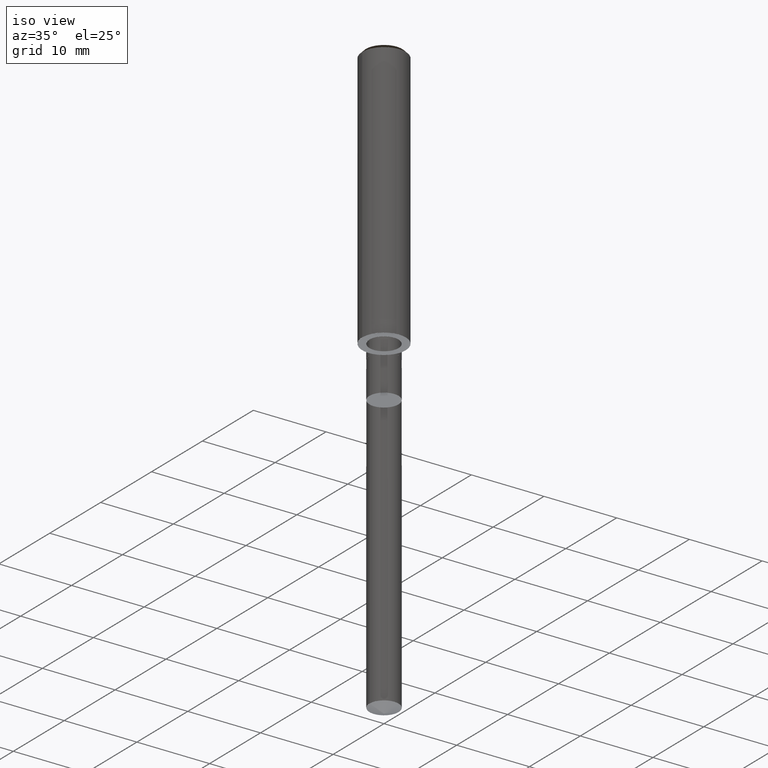
[diagram: clean part render]
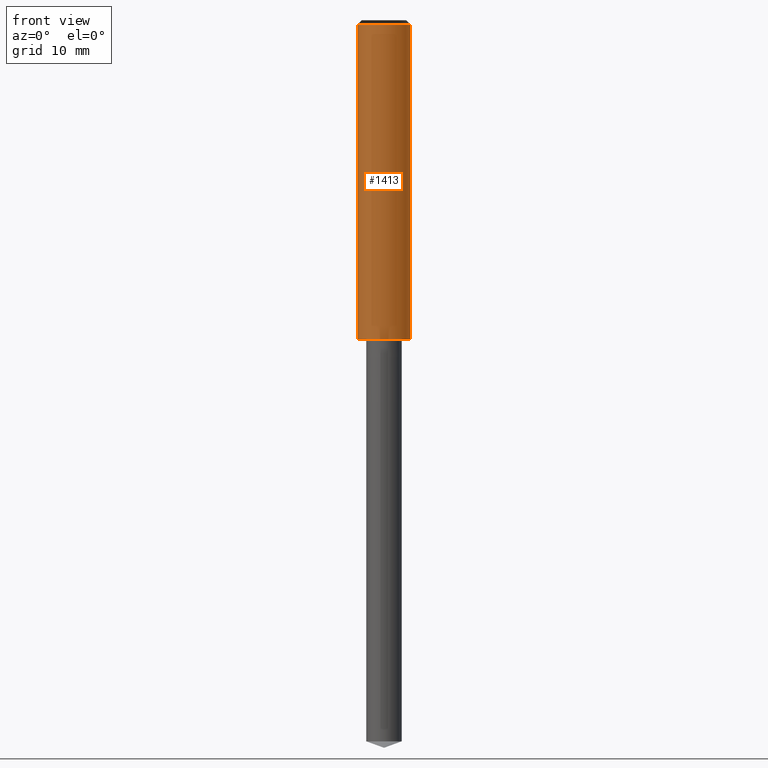
[diagram: tour spotlight — one face highlighted and labeled with its STEP entity id]
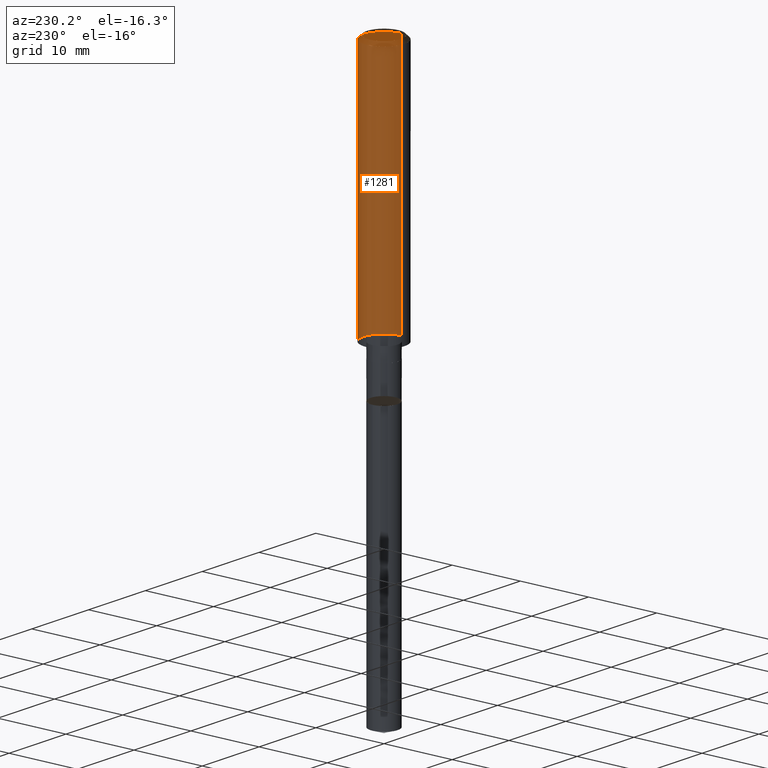
[diagram: tour spotlight — one face highlighted and labeled with its STEP entity id]
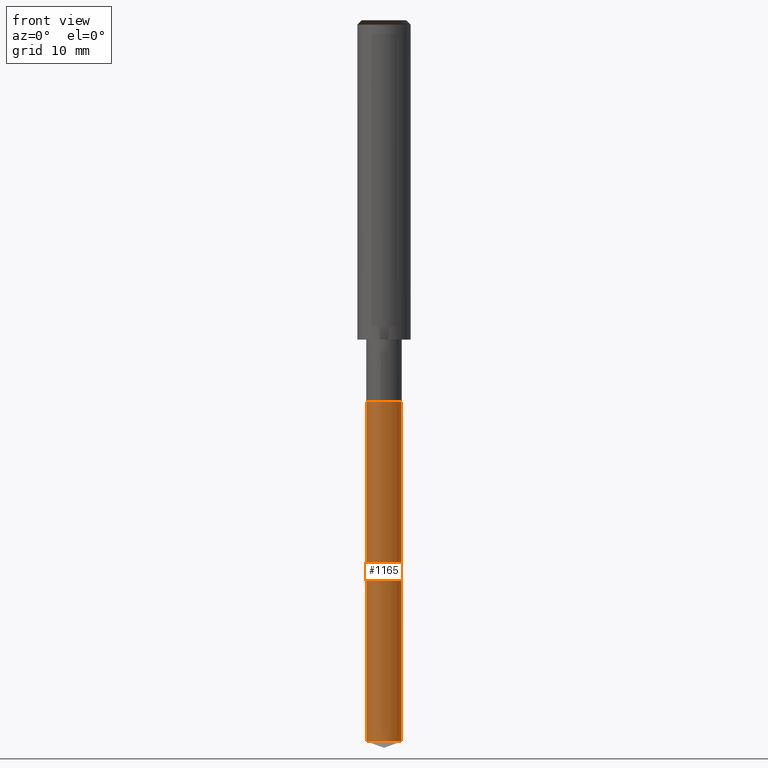
[diagram: tour spotlight — one face highlighted and labeled with its STEP entity id]
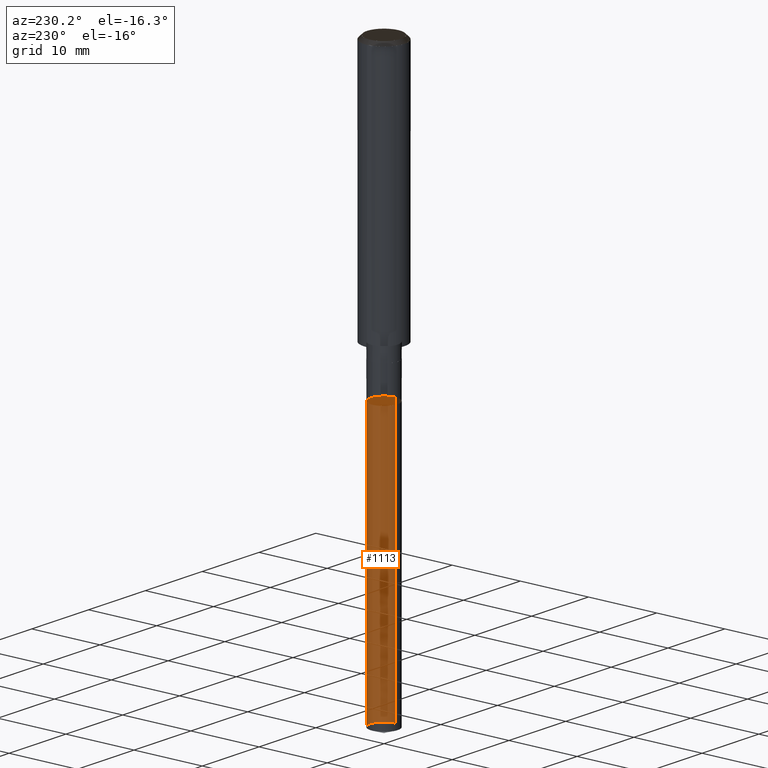
[diagram: tour spotlight — one face highlighted and labeled with its STEP entity id]
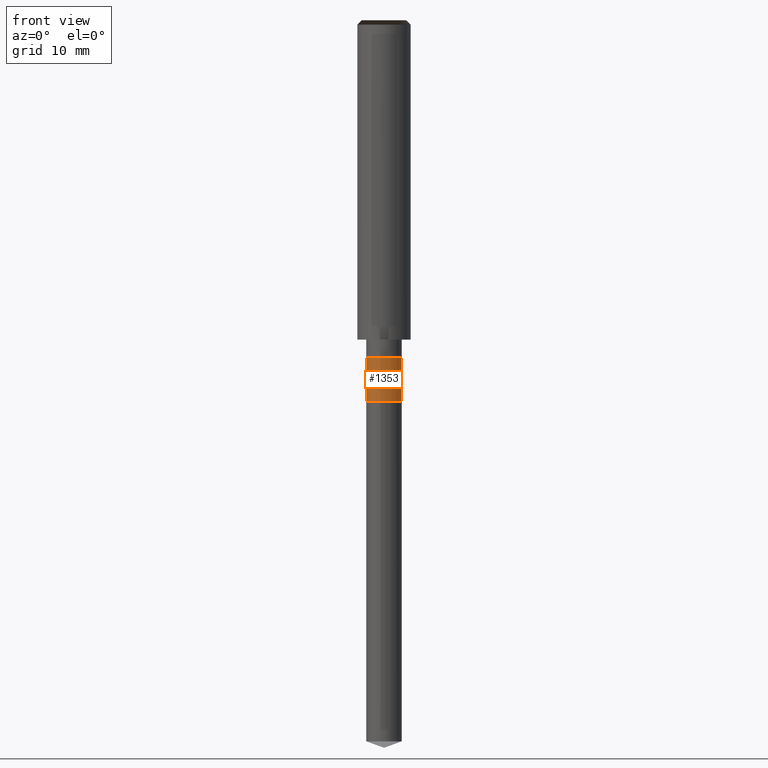
[diagram: tour spotlight — one face highlighted and labeled with its STEP entity id]
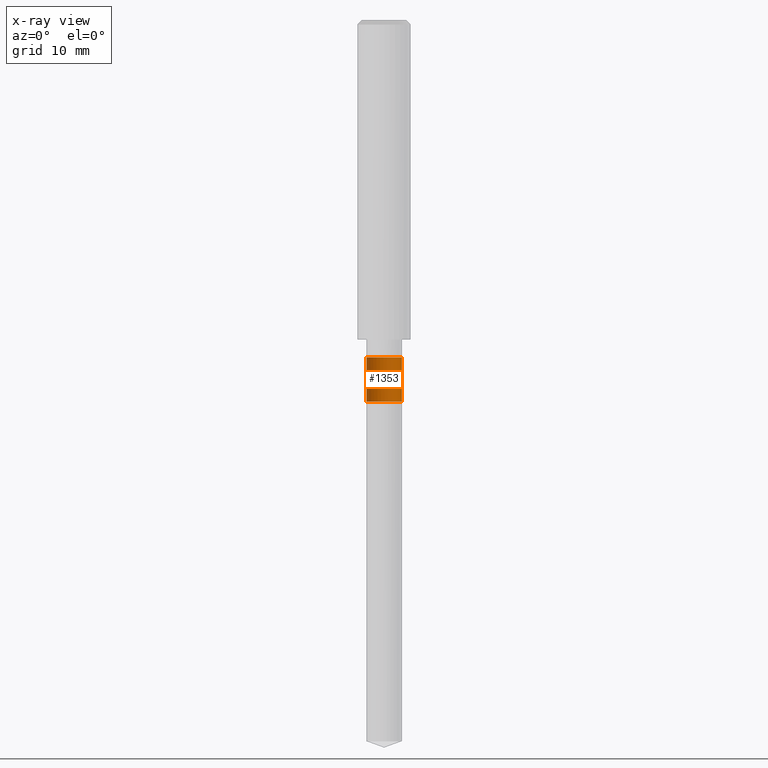
[diagram: x-ray of the same camera — body ghosted, this tour face saturated]
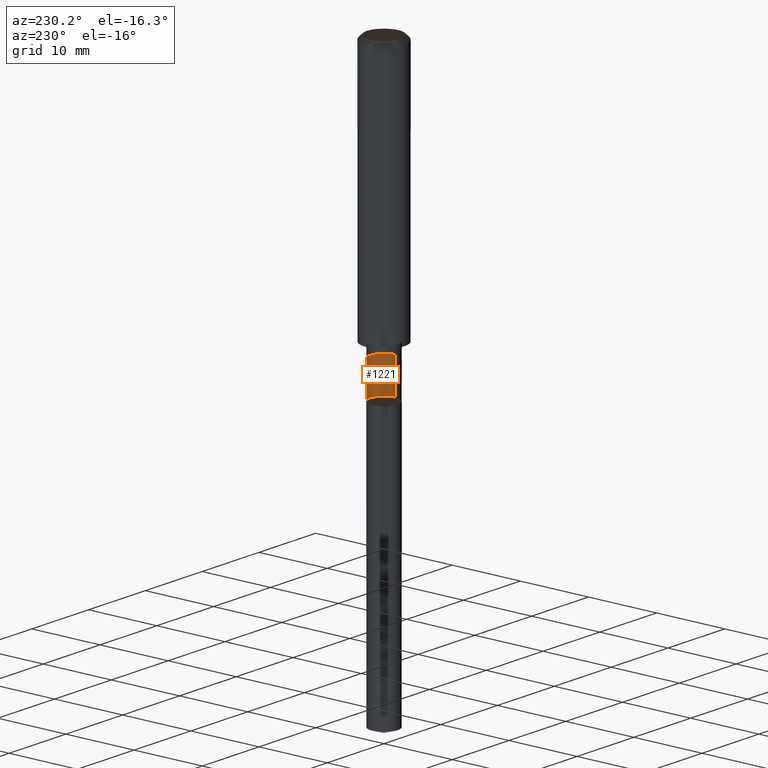
[diagram: tour spotlight — one face highlighted and labeled with its STEP entity id]
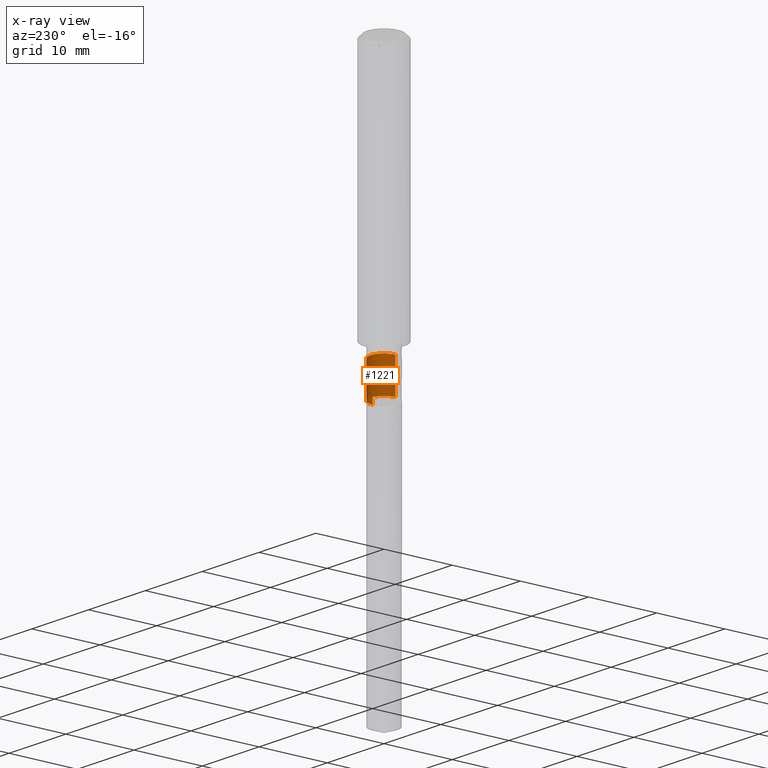
[diagram: x-ray of the same camera — body ghosted, this tour face saturated]
A machine part: a face-by-face anatomy tour. The part has 20 B-rep faces; the first image is the clean iso view, then the 6 largest visible faces are spotlighted one at a time (largest first), each with its STEP entity span.

Face 1 — front view, entity #1413. In plain terms, the highlighted face is a freeform B-spline surface patch.
Definition (entity closure, byte-faithful):
#1042=CARTESIAN_POINT('',(3.0,0.0,0.0));
#1046=CARTESIAN_POINT('',(-3.0,0.0,0.0));
#1047=CARTESIAN_POINT('',(3.0,0.0,35.5));
#1051=CARTESIAN_POINT('',(-3.0,0.0,35.5));
#1064=CARTESIAN_POINT('',(-3.0,-3.0,0.0));
#1065=CARTESIAN_POINT('',(0.0,-3.0,0.0));
#1066=CARTESIAN_POINT('',(3.0,-3.0,0.0));
#1067=CARTESIAN_POINT('',(-3.0,-3.0,35.5));
#1068=CARTESIAN_POINT('',(0.0,-3.0,35.5));
#1069=CARTESIAN_POINT('',(3.0,-3.0,35.5));
#1394=(
BOUNDED_SURFACE()
B_SPLINE_SURFACE(1,2,(
(#1046,#1064,#1065,#1066,#1042),
(#1051,#1067,#1068,#1069,#1047)
), .UNSPECIFIED.,.F.,.F.,.F.)
B_SPLINE_SURFACE_WITH_KNOTS((2,2),(3,2,3),(
0.0,1.0),(
0.0,0.5,1.0), .UNSPECIFIED.)
GEOMETRIC_REPRESENTATION_ITEM()
RATIONAL_B_SPLINE_SURFACE(((1.0,0.707106781187,1.0,0.707106781187,1.0),
(1.0,0.707106781187,1.0,0.707106781187,1.0)
))
REPRESENTATION_ITEM('')
SURFACE()
);
#1395=(
BOUNDED_CURVE()
B_SPLINE_CURVE(2,(#1042,#1066,#1065,#1064,#1046),.UNSPECIFIED.,.F.,.F.)
B_SPLINE_CURVE_WITH_KNOTS((3,2,3),
(0.0,0.5,1.0),.UNSPECIFIED.)
CURVE()
GEOMETRIC_REPRESENTATION_ITEM()
RATIONAL_B_SPLINE_CURVE((1.0,0.707106781187,1.0,0.707106781187,1.0))
REPRESENTATION_ITEM('')
);
#1396=(
BOUNDED_CURVE()
B_SPLINE_CURVE(1,(#1046,#1051),.UNSPECIFIED.,.F.,.F.)
B_SPLINE_CURVE_WITH_KNOTS((2,2),
(0.0,1.0),.UNSPECIFIED.)
CURVE()
GEOMETRIC_REPRESENTATION_ITEM()
RATIONAL_B_SPLINE_CURVE((1.0,1.0))
REPRESENTATION_ITEM('')
);
#1397=(
BOUNDED_CURVE()
B_SPLINE_CURVE(2,(#1051,#1067,#1068,#1069,#1047),.UNSPECIFIED.,.F.,.F.)
B_SPLINE_CURVE_WITH_KNOTS((3,2,3),
(0.0,0.5,1.0),.UNSPECIFIED.)
CURVE()
GEOMETRIC_REPRESENTATION_ITEM()
RATIONAL_B_SPLINE_CURVE((1.0,0.707106781187,1.0,0.707106781187,1.0))
REPRESENTATION_ITEM('')
);
#1398=(
BOUNDED_CURVE()
B_SPLINE_CURVE(1,(#1047,#1042),.UNSPECIFIED.,.F.,.F.)
B_SPLINE_CURVE_WITH_KNOTS((2,2),
(0.0,1.0),.UNSPECIFIED.)
CURVE()
GEOMETRIC_REPRESENTATION_ITEM()
RATIONAL_B_SPLINE_CURVE((1.0,1.0))
REPRESENTATION_ITEM('')
);
#1399=VERTEX_POINT('',#1042);
#1400=VERTEX_POINT('',#1046);
#1401=VERTEX_POINT('',#1047);
#1402=VERTEX_POINT('',#1051);
#1403=EDGE_CURVE('',#1399,#1400,#1395,.T.);
#1404=EDGE_CURVE('',#1400,#1402,#1396,.T.);
#1405=EDGE_CURVE('',#1402,#1401,#1397,.T.);
#1406=EDGE_CURVE('',#1401,#1399,#1398,.T.);
#1407=ORIENTED_EDGE('',*,*,#1403,.T.);
#1408=ORIENTED_EDGE('',*,*,#1404,.T.);
#1409=ORIENTED_EDGE('',*,*,#1405,.T.);
#1410=ORIENTED_EDGE('',*,*,#1406,.T.);
#1411=EDGE_LOOP('',(#1407,#1408,#1409,#1410));
#1412=FACE_OUTER_BOUND('',#1411,.T.);
#1413=ADVANCED_FACE('',(#1412),#1394,.T.);

Face 2 — auxiliary view, entity #1281. In plain terms, the highlighted face is a freeform B-spline surface patch.
Definition (entity closure, byte-faithful):
#1042=CARTESIAN_POINT('',(3.0,0.0,0.0));
#1043=CARTESIAN_POINT('',(3.0,3.0,0.0));
#1044=CARTESIAN_POINT('',(0.0,3.0,0.0));
#1045=CARTESIAN_POINT('',(-3.0,3.0,0.0));
#1046=CARTESIAN_POINT('',(-3.0,0.0,0.0));
#1047=CARTESIAN_POINT('',(3.0,0.0,35.5));
#1048=CARTESIAN_POINT('',(3.0,3.0,35.5));
#1049=CARTESIAN_POINT('',(0.0,3.0,35.5));
#1050=CARTESIAN_POINT('',(-3.0,3.0,35.5));
#1051=CARTESIAN_POINT('',(-3.0,0.0,35.5));
#1262=(
BOUNDED_SURFACE()
B_SPLINE_SURFACE(1,2,(
(#1042,#1043,#1044,#1045,#1046),
(#1047,#1048,#1049,#1050,#1051)
), .UNSPECIFIED.,.F.,.F.,.F.)
B_SPLINE_SURFACE_WITH_KNOTS((2,2),(3,2,3),(
0.0,1.0),(
0.0,0.5,1.0), .UNSPECIFIED.)
GEOMETRIC_REPRESENTATION_ITEM()
RATIONAL_B_SPLINE_SURFACE(((1.0,0.707106781187,1.0,0.707106781187,1.0),
(1.0,0.707106781187,1.0,0.707106781187,1.0)
))
REPRESENTATION_ITEM('')
SURFACE()
);
#1263=(
BOUNDED_CURVE()
B_SPLINE_CURVE(2,(#1046,#1045,#1044,#1043,#1042),.UNSPECIFIED.,.F.,.F.)
B_SPLINE_CURVE_WITH_KNOTS((3,2,3),
(0.0,0.5,1.0),.UNSPECIFIED.)
CURVE()
GEOMETRIC_REPRESENTATION_ITEM()
RATIONAL_B_SPLINE_CURVE((1.0,0.707106781187,1.0,0.707106781187,1.0))
REPRESENTATION_ITEM('')
);
#1264=(
BOUNDED_CURVE()
B_SPLINE_CURVE(1,(#1042,#1047),.UNSPECIFIED.,.F.,.F.)
B_SPLINE_CURVE_WITH_KNOTS((2,2),
(0.0,1.0),.UNSPECIFIED.)
CURVE()
GEOMETRIC_REPRESENTATION_ITEM()
RATIONAL_B_SPLINE_CURVE((1.0,1.0))
REPRESENTATION_ITEM('')
);
#1265=(
BOUNDED_CURVE()
B_SPLINE_CURVE(2,(#1047,#1048,#1049,#1050,#1051),.UNSPECIFIED.,.F.,.F.)
B_SPLINE_CURVE_WITH_KNOTS((3,2,3),
(0.0,0.5,1.0),.UNSPECIFIED.)
CURVE()
GEOMETRIC_REPRESENTATION_ITEM()
RATIONAL_B_SPLINE_CURVE((1.0,0.707106781187,1.0,0.707106781187,1.0))
REPRESENTATION_ITEM('')
);
#1266=(
BOUNDED_CURVE()
B_SPLINE_CURVE(1,(#1051,#1046),.UNSPECIFIED.,.F.,.F.)
B_SPLINE_CURVE_WITH_KNOTS((2,2),
(0.0,1.0),.UNSPECIFIED.)
CURVE()
GEOMETRIC_REPRESENTATION_ITEM()
RATIONAL_B_SPLINE_CURVE((1.0,1.0))
REPRESENTATION_ITEM('')
);
#1267=VERTEX_POINT('',#1042);
#1268=VERTEX_POINT('',#1046);
#1269=VERTEX_POINT('',#1047);
#1270=VERTEX_POINT('',#1051);
#1271=EDGE_CURVE('',#1268,#1267,#1263,.T.);
#1272=EDGE_CURVE('',#1267,#1269,#1264,.T.);
#1273=EDGE_CURVE('',#1269,#1270,#1265,.T.);
#1274=EDGE_CURVE('',#1270,#1268,#1266,.T.);
#1275=ORIENTED_EDGE('',*,*,#1271,.T.);
#1276=ORIENTED_EDGE('',*,*,#1272,.T.);
#1277=ORIENTED_EDGE('',*,*,#1273,.T.);
#1278=ORIENTED_EDGE('',*,*,#1274,.T.);
#1279=EDGE_LOOP('',(#1275,#1276,#1277,#1278));
#1280=FACE_OUTER_BOUND('',#1279,.T.);
#1281=ADVANCED_FACE('',(#1280),#1262,.T.);

Face 3 — front view, entity #1165. In plain terms, the highlighted face is a freeform B-spline surface patch.
Definition (entity closure, byte-faithful):
#1015=CARTESIAN_POINT('',(2.0,0.0,-45.272059531468));
#1019=CARTESIAN_POINT('',(-2.0,0.0,-45.272059531468));
#1020=CARTESIAN_POINT('',(2.0,0.0,-7.0));
#1024=CARTESIAN_POINT('',(-2.0,0.0,-7.0));
#1026=CARTESIAN_POINT('',(-2.0,-2.0,-45.272059531468));
#1027=CARTESIAN_POINT('',(0.0,-2.0,-45.272059531468));
#1028=CARTESIAN_POINT('',(2.0,-2.0,-45.272059531468));
#1029=CARTESIAN_POINT('',(-2.0,-2.0,-7.0));
#1030=CARTESIAN_POINT('',(0.0,-2.0,-7.0));
#1031=CARTESIAN_POINT('',(2.0,-2.0,-7.0));
#1146=(
BOUNDED_SURFACE()
B_SPLINE_SURFACE(1,2,(
(#1019,#1026,#1027,#1028,#1015),
(#1024,#1029,#1030,#1031,#1020)
), .UNSPECIFIED.,.F.,.F.,.F.)
B_SPLINE_SURFACE_WITH_KNOTS((2,2),(3,2,3),(
0.0,1.0),(
0.0,0.5,1.0), .UNSPECIFIED.)
GEOMETRIC_REPRESENTATION_ITEM()
RATIONAL_B_SPLINE_SURFACE(((1.0,0.707106781187,1.0,0.707106781187,1.0),
(1.0,0.707106781187,1.0,0.707106781187,1.0)
))
REPRESENTATION_ITEM('')
SURFACE()
);
#1147=(
BOUNDED_CURVE()
B_SPLINE_CURVE(2,(#1015,#1028,#1027,#1026,#1019),.UNSPECIFIED.,.F.,.F.)
B_SPLINE_CURVE_WITH_KNOTS((3,2,3),
(0.0,0.5,1.0),.UNSPECIFIED.)
CURVE()
GEOMETRIC_REPRESENTATION_ITEM()
RATIONAL_B_SPLINE_CURVE((1.0,0.707106781187,1.0,0.707106781187,1.0))
REPRESENTATION_ITEM('')
);
#1148=(
BOUNDED_CURVE()
B_SPLINE_CURVE(1,(#1019,#1024),.UNSPECIFIED.,.F.,.F.)
B_SPLINE_CURVE_WITH_KNOTS((2,2),
(0.0,1.0),.UNSPECIFIED.)
CURVE()
GEOMETRIC_REPRESENTATION_ITEM()
RATIONAL_B_SPLINE_CURVE((1.0,1.0))
REPRESENTATION_ITEM('')
);
#1149=(
BOUNDED_CURVE()
B_SPLINE_CURVE(2,(#1024,#1029,#1030,#1031,#1020),.UNSPECIFIED.,.F.,.F.)
B_SPLINE_CURVE_WITH_KNOTS((3,2,3),
(0.0,0.5,1.0),.UNSPECIFIED.)
CURVE()
GEOMETRIC_REPRESENTATION_ITEM()
RATIONAL_B_SPLINE_CURVE((1.0,0.707106781187,1.0,0.707106781187,1.0))
REPRESENTATION_ITEM('')
);
#1150=(
BOUNDED_CURVE()
B_SPLINE_CURVE(1,(#1020,#1015),.UNSPECIFIED.,.F.,.F.)
B_SPLINE_CURVE_WITH_KNOTS((2,2),
(0.0,1.0),.UNSPECIFIED.)
CURVE()
GEOMETRIC_REPRESENTATION_ITEM()
RATIONAL_B_SPLINE_CURVE((1.0,1.0))
REPRESENTATION_ITEM('')
);
#1151=VERTEX_POINT('',#1015);
#1152=VERTEX_POINT('',#1019);
#1153=VERTEX_POINT('',#1020);
#1154=VERTEX_POINT('',#1024);
#1155=EDGE_CURVE('',#1151,#1152,#1147,.T.);
#1156=EDGE_CURVE('',#1152,#1154,#1148,.T.);
#1157=EDGE_CURVE('',#1154,#1153,#1149,.T.);
#1158=EDGE_CURVE('',#1153,#1151,#1150,.T.);
#1159=ORIENTED_EDGE('',*,*,#1155,.T.);
#1160=ORIENTED_EDGE('',*,*,#1156,.T.);
#1161=ORIENTED_EDGE('',*,*,#1157,.T.);
#1162=ORIENTED_EDGE('',*,*,#1158,.T.);
#1163=EDGE_LOOP('',(#1159,#1160,#1161,#1162));
#1164=FACE_OUTER_BOUND('',#1163,.T.);
#1165=ADVANCED_FACE('',(#1164),#1146,.T.);

Face 4 — auxiliary view, entity #1113. In plain terms, the highlighted face is a freeform B-spline surface patch.
Definition (entity closure, byte-faithful):
#1015=CARTESIAN_POINT('',(2.0,0.0,-45.272059531468));
#1016=CARTESIAN_POINT('',(2.0,2.0,-45.272059531468));
#1017=CARTESIAN_POINT('',(0.0,2.0,-45.272059531468));
#1018=CARTESIAN_POINT('',(-2.0,2.0,-45.272059531468));
#1019=CARTESIAN_POINT('',(-2.0,0.0,-45.272059531468));
#1020=CARTESIAN_POINT('',(2.0,0.0,-7.0));
#1021=CARTESIAN_POINT('',(2.0,2.0,-7.0));
#1022=CARTESIAN_POINT('',(0.0,2.0,-7.0));
#1023=CARTESIAN_POINT('',(-2.0,2.0,-7.0));
#1024=CARTESIAN_POINT('',(-2.0,0.0,-7.0));
#1094=(
BOUNDED_SURFACE()
B_SPLINE_SURFACE(1,2,(
(#1015,#1016,#1017,#1018,#1019),
(#1020,#1021,#1022,#1023,#1024)
), .UNSPECIFIED.,.F.,.F.,.F.)
B_SPLINE_SURFACE_WITH_KNOTS((2,2),(3,2,3),(
0.0,1.0),(
0.0,0.5,1.0), .UNSPECIFIED.)
GEOMETRIC_REPRESENTATION_ITEM()
RATIONAL_B_SPLINE_SURFACE(((1.0,0.707106781187,1.0,0.707106781187,1.0),
(1.0,0.707106781187,1.0,0.707106781187,1.0)
))
REPRESENTATION_ITEM('')
SURFACE()
);
#1095=(
BOUNDED_CURVE()
B_SPLINE_CURVE(2,(#1019,#1018,#1017,#1016,#1015),.UNSPECIFIED.,.F.,.F.)
B_SPLINE_CURVE_WITH_KNOTS((3,2,3),
(0.0,0.5,1.0),.UNSPECIFIED.)
CURVE()
GEOMETRIC_REPRESENTATION_ITEM()
RATIONAL_B_SPLINE_CURVE((1.0,0.707106781187,1.0,0.707106781187,1.0))
REPRESENTATION_ITEM('')
);
#1096=(
BOUNDED_CURVE()
B_SPLINE_CURVE(1,(#1015,#1020),.UNSPECIFIED.,.F.,.F.)
B_SPLINE_CURVE_WITH_KNOTS((2,2),
(0.0,1.0),.UNSPECIFIED.)
CURVE()
GEOMETRIC_REPRESENTATION_ITEM()
RATIONAL_B_SPLINE_CURVE((1.0,1.0))
REPRESENTATION_ITEM('')
);
#1097=(
BOUNDED_CURVE()
B_SPLINE_CURVE(2,(#1020,#1021,#1022,#1023,#1024),.UNSPECIFIED.,.F.,.F.)
B_SPLINE_CURVE_WITH_KNOTS((3,2,3),
(0.0,0.5,1.0),.UNSPECIFIED.)
CURVE()
GEOMETRIC_REPRESENTATION_ITEM()
RATIONAL_B_SPLINE_CURVE((1.0,0.707106781187,1.0,0.707106781187,1.0))
REPRESENTATION_ITEM('')
);
#1098=(
BOUNDED_CURVE()
B_SPLINE_CURVE(1,(#1024,#1019),.UNSPECIFIED.,.F.,.F.)
B_SPLINE_CURVE_WITH_KNOTS((2,2),
(0.0,1.0),.UNSPECIFIED.)
CURVE()
GEOMETRIC_REPRESENTATION_ITEM()
RATIONAL_B_SPLINE_CURVE((1.0,1.0))
REPRESENTATION_ITEM('')
);
#1099=VERTEX_POINT('',#1015);
#1100=VERTEX_POINT('',#1019);
#1101=VERTEX_POINT('',#1020);
#1102=VERTEX_POINT('',#1024);
#1103=EDGE_CURVE('',#1100,#1099,#1095,.T.);
#1104=EDGE_CURVE('',#1099,#1101,#1096,.T.);
#1105=EDGE_CURVE('',#1101,#1102,#1097,.T.);
#1106=EDGE_CURVE('',#1102,#1100,#1098,.T.);
#1107=ORIENTED_EDGE('',*,*,#1103,.T.);
#1108=ORIENTED_EDGE('',*,*,#1104,.T.);
#1109=ORIENTED_EDGE('',*,*,#1105,.T.);
#1110=ORIENTED_EDGE('',*,*,#1106,.T.);
#1111=EDGE_LOOP('',(#1107,#1108,#1109,#1110));
#1112=FACE_OUTER_BOUND('',#1111,.T.);
#1113=ADVANCED_FACE('',(#1112),#1094,.T.);

Face 5 — front view, entity #1353. An x-ray twin of the same camera follows (body ghosted, this face saturated) — the face is partly hidden behind the body. In plain terms, the highlighted face is a freeform B-spline surface patch.
Definition (entity closure, byte-faithful):
#1020=CARTESIAN_POINT('',(2.0,0.0,-7.0));
#1024=CARTESIAN_POINT('',(-2.0,0.0,-7.0));
#1029=CARTESIAN_POINT('',(-2.0,-2.0,-7.0));
#1030=CARTESIAN_POINT('',(0.0,-2.0,-7.0));
#1031=CARTESIAN_POINT('',(2.0,-2.0,-7.0));
#1032=CARTESIAN_POINT('',(2.0,0.0,-2.0));
#1036=CARTESIAN_POINT('',(-2.0,0.0,-2.0));
#1058=CARTESIAN_POINT('',(-2.0,-2.0,-2.0));
#1059=CARTESIAN_POINT('',(0.0,-2.0,-2.0));
#1060=CARTESIAN_POINT('',(2.0,-2.0,-2.0));
#1334=(
BOUNDED_SURFACE()
B_SPLINE_SURFACE(1,2,(
(#1024,#1029,#1030,#1031,#1020),
(#1036,#1058,#1059,#1060,#1032)
), .UNSPECIFIED.,.F.,.F.,.F.)
B_SPLINE_SURFACE_WITH_KNOTS((2,2),(3,2,3),(
0.0,1.0),(
0.0,0.5,1.0), .UNSPECIFIED.)
GEOMETRIC_REPRESENTATION_ITEM()
RATIONAL_B_SPLINE_SURFACE(((1.0,0.707106781187,1.0,0.707106781187,1.0),
(1.0,0.707106781187,1.0,0.707106781187,1.0)
))
REPRESENTATION_ITEM('')
SURFACE()
);
#1335=(
BOUNDED_CURVE()
B_SPLINE_CURVE(2,(#1020,#1031,#1030,#1029,#1024),.UNSPECIFIED.,.F.,.F.)
B_SPLINE_CURVE_WITH_KNOTS((3,2,3),
(0.0,0.5,1.0),.UNSPECIFIED.)
CURVE()
GEOMETRIC_REPRESENTATION_ITEM()
RATIONAL_B_SPLINE_CURVE((1.0,0.707106781187,1.0,0.707106781187,1.0))
REPRESENTATION_ITEM('')
);
#1336=(
BOUNDED_CURVE()
B_SPLINE_CURVE(1,(#1024,#1036),.UNSPECIFIED.,.F.,.F.)
B_SPLINE_CURVE_WITH_KNOTS((2,2),
(0.0,1.0),.UNSPECIFIED.)
CURVE()
GEOMETRIC_REPRESENTATION_ITEM()
RATIONAL_B_SPLINE_CURVE((1.0,1.0))
REPRESENTATION_ITEM('')
);
#1337=(
BOUNDED_CURVE()
B_SPLINE_CURVE(2,(#1036,#1058,#1059,#1060,#1032),.UNSPECIFIED.,.F.,.F.)
B_SPLINE_CURVE_WITH_KNOTS((3,2,3),
(0.0,0.5,1.0),.UNSPECIFIED.)
CURVE()
GEOMETRIC_REPRESENTATION_ITEM()
RATIONAL_B_SPLINE_CURVE((1.0,0.707106781187,1.0,0.707106781187,1.0))
REPRESENTATION_ITEM('')
);
#1338=(
BOUNDED_CURVE()
B_SPLINE_CURVE(1,(#1032,#1020),.UNSPECIFIED.,.F.,.F.)
B_SPLINE_CURVE_WITH_KNOTS((2,2),
(0.0,1.0),.UNSPECIFIED.)
CURVE()
GEOMETRIC_REPRESENTATION_ITEM()
RATIONAL_B_SPLINE_CURVE((1.0,1.0))
REPRESENTATION_ITEM('')
);
#1339=VERTEX_POINT('',#1020);
#1340=VERTEX_POINT('',#1024);
#1341=VERTEX_POINT('',#1032);
#1342=VERTEX_POINT('',#1036);
#1343=EDGE_CURVE('',#1339,#1340,#1335,.T.);
#1344=EDGE_CURVE('',#1340,#1342,#1336,.T.);
#1345=EDGE_CURVE('',#1342,#1341,#1337,.T.);
#1346=EDGE_CURVE('',#1341,#1339,#1338,.T.);
#1347=ORIENTED_EDGE('',*,*,#1343,.T.);
#1348=ORIENTED_EDGE('',*,*,#1344,.T.);
#1349=ORIENTED_EDGE('',*,*,#1345,.T.);
#1350=ORIENTED_EDGE('',*,*,#1346,.T.);
#1351=EDGE_LOOP('',(#1347,#1348,#1349,#1350));
#1352=FACE_OUTER_BOUND('',#1351,.T.);
#1353=ADVANCED_FACE('',(#1352),#1334,.T.);

Face 6 — auxiliary view, entity #1221. An x-ray twin of the same camera follows (body ghosted, this face saturated) — the face is partly hidden behind the body. In plain terms, the highlighted face is a freeform B-spline surface patch.
Definition (entity closure, byte-faithful):
#1020=CARTESIAN_POINT('',(2.0,0.0,-7.0));
#1021=CARTESIAN_POINT('',(2.0,2.0,-7.0));
#1022=CARTESIAN_POINT('',(0.0,2.0,-7.0));
#1023=CARTESIAN_POINT('',(-2.0,2.0,-7.0));
#1024=CARTESIAN_POINT('',(-2.0,0.0,-7.0));
#1032=CARTESIAN_POINT('',(2.0,0.0,-2.0));
#1033=CARTESIAN_POINT('',(2.0,2.0,-2.0));
#1034=CARTESIAN_POINT('',(0.0,2.0,-2.0));
#1035=CARTESIAN_POINT('',(-2.0,2.0,-2.0));
#1036=CARTESIAN_POINT('',(-2.0,0.0,-2.0));
#1202=(
BOUNDED_SURFACE()
B_SPLINE_SURFACE(1,2,(
(#1020,#1021,#1022,#1023,#1024),
(#1032,#1033,#1034,#1035,#1036)
), .UNSPECIFIED.,.F.,.F.,.F.)
B_SPLINE_SURFACE_WITH_KNOTS((2,2),(3,2,3),(
0.0,1.0),(
0.0,0.5,1.0), .UNSPECIFIED.)
GEOMETRIC_REPRESENTATION_ITEM()
RATIONAL_B_SPLINE_SURFACE(((1.0,0.707106781187,1.0,0.707106781187,1.0),
(1.0,0.707106781187,1.0,0.707106781187,1.0)
))
REPRESENTATION_ITEM('')
SURFACE()
);
#1203=(
BOUNDED_CURVE()
B_SPLINE_CURVE(2,(#1024,#1023,#1022,#1021,#1020),.UNSPECIFIED.,.F.,.F.)
B_SPLINE_CURVE_WITH_KNOTS((3,2,3),
(0.0,0.5,1.0),.UNSPECIFIED.)
CURVE()
GEOMETRIC_REPRESENTATION_ITEM()
RATIONAL_B_SPLINE_CURVE((1.0,0.707106781187,1.0,0.707106781187,1.0))
REPRESENTATION_ITEM('')
);
#1204=(
BOUNDED_CURVE()
B_SPLINE_CURVE(1,(#1020,#1032),.UNSPECIFIED.,.F.,.F.)
B_SPLINE_CURVE_WITH_KNOTS((2,2),
(0.0,1.0),.UNSPECIFIED.)
CURVE()
GEOMETRIC_REPRESENTATION_ITEM()
RATIONAL_B_SPLINE_CURVE((1.0,1.0))
REPRESENTATION_ITEM('')
);
#1205=(
BOUNDED_CURVE()
B_SPLINE_CURVE(2,(#1032,#1033,#1034,#1035,#1036),.UNSPECIFIED.,.F.,.F.)
B_SPLINE_CURVE_WITH_KNOTS((3,2,3),
(0.0,0.5,1.0),.UNSPECIFIED.)
CURVE()
GEOMETRIC_REPRESENTATION_ITEM()
RATIONAL_B_SPLINE_CURVE((1.0,0.707106781187,1.0,0.707106781187,1.0))
REPRESENTATION_ITEM('')
);
#1206=(
BOUNDED_CURVE()
B_SPLINE_CURVE(1,(#1036,#1024),.UNSPECIFIED.,.F.,.F.)
B_SPLINE_CURVE_WITH_KNOTS((2,2),
(0.0,1.0),.UNSPECIFIED.)
CURVE()
GEOMETRIC_REPRESENTATION_ITEM()
RATIONAL_B_SPLINE_CURVE((1.0,1.0))
REPRESENTATION_ITEM('')
);
#1207=VERTEX_POINT('',#1020);
#1208=VERTEX_POINT('',#1024);
#1209=VERTEX_POINT('',#1032);
#1210=VERTEX_POINT('',#1036);
#1211=EDGE_CURVE('',#1208,#1207,#1203,.T.);
#1212=EDGE_CURVE('',#1207,#1209,#1204,.T.);
#1213=EDGE_CURVE('',#1209,#1210,#1205,.T.);
#1214=EDGE_CURVE('',#1210,#1208,#1206,.T.);
#1215=ORIENTED_EDGE('',*,*,#1211,.T.);
#1216=ORIENTED_EDGE('',*,*,#1212,.T.);
#1217=ORIENTED_EDGE('',*,*,#1213,.T.);
#1218=ORIENTED_EDGE('',*,*,#1214,.T.);
#1219=EDGE_LOOP('',(#1215,#1216,#1217,#1218));
#1220=FACE_OUTER_BOUND('',#1219,.T.);
#1221=ADVANCED_FACE('',(#1220),#1202,.T.);